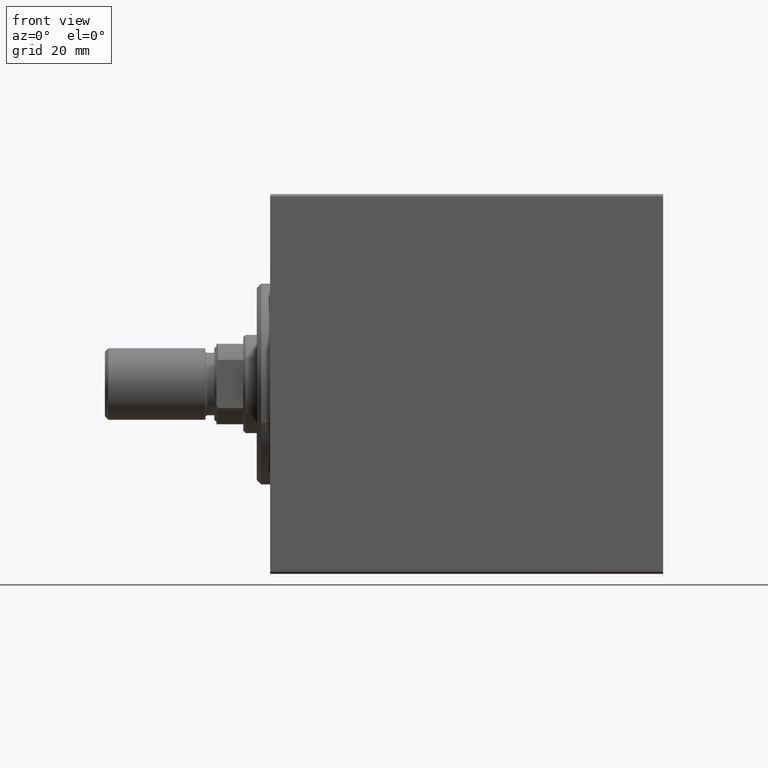
[diagram: clean part render]
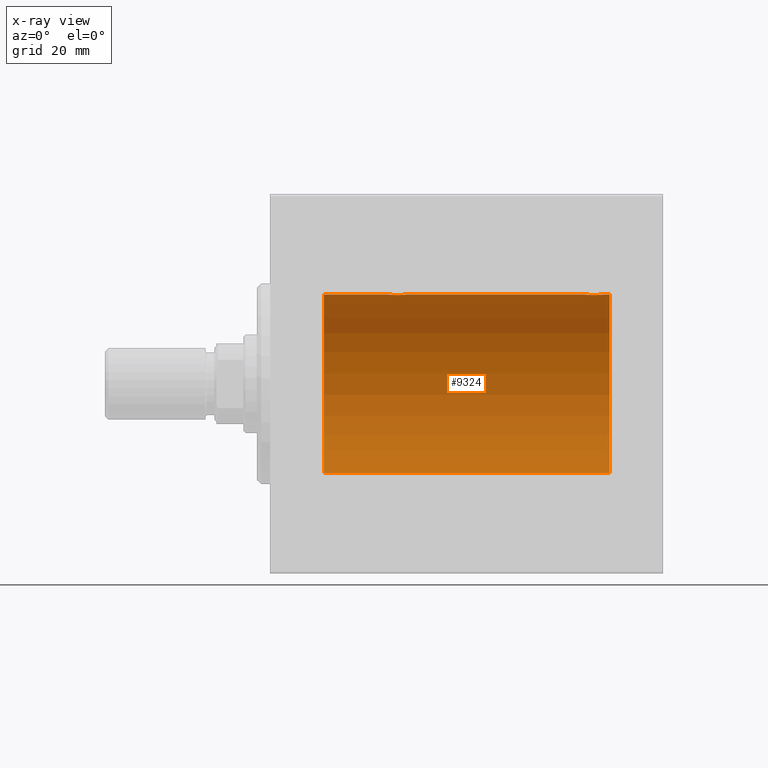
[diagram: x-ray — body ghosted, one internal face saturated and labeled with its STEP entity id]
A machine part, front view, then the same camera in x-ray: the body is ghosted and one INTERNAL B-rep face — a face not visible from any outside direction — is saturated and labeled: STEP entity #9324.
In plain terms, the highlighted cylindrical surface (partial cylindrical patch) has radius 20 mm, axis along (-1, -0, -0).
Its self-contained STEP definition (entity closure, byte-faithful):
#1164 = DIRECTION ( 'NONE',  ( -1.000000000000000000, -0.000000000000000000, -0.000000000000000000 ) ) ;
#1178 = CARTESIAN_POINT ( 'NONE',  ( 74.00615770380713343, 1.322305185229304181, 19.95645382900617548 ) ) ;
#1425 = AXIS2_PLACEMENT_3D ( 'NONE', #35926, #19293, #19733 ) ;
#1738 = CARTESIAN_POINT ( 'NONE',  ( 74.50000000000001421, 1.186436973908835920E-15, 20.00000000000000000 ) ) ;
#2182 = CARTESIAN_POINT ( 'NONE',  ( 30.29721343056696270, 0.8872481584516728192, 19.98067755938509293 ) ) ;
#2316 = EDGE_CURVE ( 'NONE', #23399, #4455, #19003, .T. ) ;
#2392 = CARTESIAN_POINT ( 'NONE',  ( 26.51308707988552982, 0.2631998640366418063, 19.99867931558985745 ) ) ;
#2435 = ORIENTED_EDGE ( 'NONE', *, *, #30369, .T. ) ;
#2542 = LINE ( 'NONE', #9286, #22525 ) ;
#3048 = CARTESIAN_POINT ( 'NONE',  ( 30.48701494615325203, 0.2622407139811110399, 19.99868965376114716 ) ) ;
#3874 = CARTESIAN_POINT ( 'NONE',  ( 74.23576365127897247, 1.002099838626306916, 19.97517568592525805 ) ) ;
#4204 = DIRECTION ( 'NONE',  ( -1.000000000000000000, 0.000000000000000000, 0.000000000000000000 ) ) ;
#4455 = VERTEX_POINT ( 'NONE', #24556 ) ;
#5423 = CYLINDRICAL_SURFACE ( 'NONE', #25415, 20.00000000000000000 ) ;
#5438 = CARTESIAN_POINT ( 'NONE',  ( 76.00000000000000000, 0.000000000000000000, 20.00000000000000000 ) ) ;
#5556 = CARTESIAN_POINT ( 'NONE',  ( 26.70246098872837592, 0.8865903856744279388, 19.98070694681038972 ) ) ;
#5771 = CARTESIAN_POINT ( 'NONE',  ( 28.37018818709294266, 2.000047251570880924, 19.89974399317116038 ) ) ;
#5876 = CARTESIAN_POINT ( 'NONE',  ( 76.00000000000000000, 0.000000000000000000, 20.00000000000000000 ) ) ;
#6252 = ORIENTED_EDGE ( 'NONE', *, *, #36540, .T. ) ;
#7701 = CARTESIAN_POINT ( 'NONE',  ( 73.72950112230634545, 1.598854313793176551, 19.93684595445884966 ) ) ;
#8137 = CARTESIAN_POINT ( 'NONE',  ( 74.39765113166073718, 0.6450624715427610845, 19.98996196681220283 ) ) ;
#8793 = FACE_OUTER_BOUND ( 'NONE', #33242, .T. ) ;
#8920 = CARTESIAN_POINT ( 'NONE',  ( 30.39765113166074073, 0.6450624715427593081, 19.98996196681220283 ) ) ;
#9206 = EDGE_CURVE ( 'NONE', #17893, #43491, #2542, .T. ) ;
#9286 = CARTESIAN_POINT ( 'NONE',  ( 76.00000000000000000, 0.000000000000000000, 20.00000000000000000 ) ) ;
#9324 = ADVANCED_FACE ( 'NONE', ( #8793 ), #5423, .F. ) ;
#9573 = CARTESIAN_POINT ( 'NONE',  ( 30.00615770380712988, 1.322305185229305735, 19.95645382900617548 ) ) ;
#9620 = B_SPLINE_CURVE_WITH_KNOTS ( 'NONE', 3,
 ( #31311, #18247, #34680, #14434, #8137, #31967, #3874, #17584, #1178, #7701, #28593, #21849, #41646, #21193, #14212, #27931, #10848, #21416, #24573, #17810, #31530, #28149, #35125, #19155, #12620, #22075, #11722, #28814, #42525, #35785 ),
 .UNSPECIFIED., .F., .F.,
 ( 4, 2, 2, 2, 2, 2, 2, 2, 2, 2, 2, 2, 2, 2, 4 ),
 ( 1.152885170027690115E-18, 0.0003910512220831370437, 0.0007821024441662730031, 0.001173153666249408637, 0.001564204888332544705, 0.002346307332498786483, 0.003128409776665028695, 0.003519460998748129201, 0.003910512220831229707, 0.004301563442914329780, 0.004692614664997429852, 0.005083665887080529924, 0.005474717109163630864, 0.005865768331246730936, 0.006256819553329831876 ),
 .UNSPECIFIED. ) ;
#10122 = DIRECTION ( 'NONE',  ( -1.000000000000000000, -0.000000000000000000, -0.000000000000000000 ) ) ;
#10273 = ORIENTED_EDGE ( 'NONE', *, *, #41844, .T. ) ;
#10848 = CARTESIAN_POINT ( 'NONE',  ( 71.85628869360149906, 1.898109641280496751, 19.90978941500367227 ) ) ;
#11722 = CARTESIAN_POINT ( 'NONE',  ( 70.56426851132709999, 0.5196544277756649510, 19.99365919015136583 ) ) ;
#12013 = VECTOR ( 'NONE', #38725, 1000.000000000000000 ) ;
#12475 = VERTEX_POINT ( 'NONE', #35281 ) ;
#12620 = CARTESIAN_POINT ( 'NONE',  ( 70.70246098872841856, 0.8865903856744244971, 19.98070694681040038 ) ) ;
#13402 = CARTESIAN_POINT ( 'NONE',  ( 28.23758582179998911, 1.987020435121066742, 19.90106552791689509 ) ) ;
#14212 = CARTESIAN_POINT ( 'NONE',  ( 72.23758582180001042, 1.987020435121064521, 19.90106552791689154 ) ) ;
#14434 = CARTESIAN_POINT ( 'NONE',  ( 74.43615228383326610, 0.5179893069484604595, 19.99370013622813858 ) ) ;
#15797 = VECTOR ( 'NONE', #10122, 1000.000000000000000 ) ;
#15884 = CARTESIAN_POINT ( 'NONE',  ( 26.50000000000000711, 0.1305706983324430859, 20.00000000000000355 ) ) ;
#16012 = ORIENTED_EDGE ( 'NONE', *, *, #23275, .T. ) ;
#16331 = CARTESIAN_POINT ( 'NONE',  ( 26.50000000000000355, -1.552596590610734385E-23, 20.00000000000000000 ) ) ;
#16764 = CARTESIAN_POINT ( 'NONE',  ( 27.98100525813890371, 1.935912154109691308, 19.90610216711450775 ) ) ;
#16786 = ORIENTED_EDGE ( 'NONE', *, *, #40880, .T. ) ;
#17584 = CARTESIAN_POINT ( 'NONE',  ( 74.09059733457554842, 1.219458756546262235, 19.96308513509967142 ) ) ;
#17661 = VECTOR ( 'NONE', #37078, 1000.000000000000000 ) ;
#17810 = CARTESIAN_POINT ( 'NONE',  ( 71.28039724650255948, 1.590453176650905798, 19.93679350243183634 ) ) ;
#17893 = VERTEX_POINT ( 'NONE', #38845 ) ;
#18247 = CARTESIAN_POINT ( 'NONE',  ( 74.50000000000002842, 0.1322335637814732179, 19.99999999999999289 ) ) ;
#18680 = CARTESIAN_POINT ( 'NONE',  ( 76.00000000000000000, 0.000000000000000000, 0.000000000000000000 ) ) ;
#19003 = CIRCLE ( 'NONE', #31227, 20.00000000000000000 ) ;
#19022 = ORIENTED_EDGE ( 'NONE', *, *, #25510, .F. ) ;
#19155 = CARTESIAN_POINT ( 'NONE',  ( 70.76510545398019758, 1.003547732426800287, 19.97510079925437765 ) ) ;
#19241 = ORIENTED_EDGE ( 'NONE', *, *, #2316, .F. ) ;
#19267 = CARTESIAN_POINT ( 'NONE',  ( 26.56426851132708222, 0.5196544277756667274, 19.99365919015135873 ) ) ;
#19293 = DIRECTION ( 'NONE',  ( -1.000000000000000000, 0.000000000000000000, 0.000000000000000000 ) ) ;
#19484 = CARTESIAN_POINT ( 'NONE',  ( 26.76510545398016205, 1.003547732426802286, 19.97510079925437765 ) ) ;
#19733 = DIRECTION ( 'NONE',  ( 0.000000000000000000, 0.000000000000000000, 1.000000000000000000 ) ) ;
#19778 = CARTESIAN_POINT ( 'NONE',  ( 76.00000000000000000, 2.449293598294706513E-15, -20.00000000000000000 ) ) ;
#20970 = CARTESIAN_POINT ( 'NONE',  ( 11.99999999999999645, 0.000000000000000000, 20.00000000000000000 ) ) ;
#21193 = CARTESIAN_POINT ( 'NONE',  ( 72.37018818709297818, 2.000047251570878704, 19.89974399317116749 ) ) ;
#21371 = VERTEX_POINT ( 'NONE', #20970 ) ;
#21416 = CARTESIAN_POINT ( 'NONE',  ( 71.61403810544165083, 1.797847595792759101, 19.91909332229799645 ) ) ;
#21726 = VERTEX_POINT ( 'NONE', #1738 ) ;
#21849 = CARTESIAN_POINT ( 'NONE',  ( 73.02513908454996283, 1.947330458682945187, 19.90522393307484705 ) ) ;
#22075 = CARTESIAN_POINT ( 'NONE',  ( 70.60210312641139296, 0.6443418861413054977, 19.98998539619405435 ) ) ;
#22282 = B_SPLINE_CURVE_WITH_KNOTS ( 'NONE', 3,
 ( #36569, #23300, #3048, #40378, #8920, #2182, #22861, #40162, #9573, #32985, #26672, #44195, #40599, #5771, #13402, #16764, #43538, #37005, #43756, #26458, #22640, #36351, #36790, #19484, #5556, #33423, #19267, #2392, #15884, #16331 ),
 .UNSPECIFIED., .F., .F.,
 ( 4, 2, 2, 2, 2, 2, 2, 2, 2, 2, 2, 2, 2, 2, 4 ),
 ( 1.491064056086547960E-18, 0.0003910512220831125949, 0.0007821024441662236719, 0.001173153666249334695, 0.001564204888332445826, 0.002346307332498667655, 0.003128409776664889917, 0.003519460998748006036, 0.003910512220831123022, 0.004301563442914238707, 0.004692614664997354391, 0.005083665887080470944, 0.005474717109163585761, 0.005865768331246702313, 0.006256819553329818866 ),
 .UNSPECIFIED. ) ;
#22525 = VECTOR ( 'NONE', #43905, 1000.000000000000000 ) ;
#22640 = CARTESIAN_POINT ( 'NONE',  ( 27.17939834916166575, 1.507796451871720844, 19.94330239452387943 ) ) ;
#22861 = CARTESIAN_POINT ( 'NONE',  ( 30.23576365127895471, 1.002099838626313133, 19.97517568592526516 ) ) ;
#23275 = EDGE_CURVE ( 'NONE', #21726, #17893, #9620, .T. ) ;
#23300 = CARTESIAN_POINT ( 'NONE',  ( 30.49999999999998934, 0.1322335637814726905, 19.99999999999999645 ) ) ;
#23399 = VERTEX_POINT ( 'NONE', #5438 ) ;
#23910 = ORIENTED_EDGE ( 'NONE', *, *, #9206, .T. ) ;
#24556 = CARTESIAN_POINT ( 'NONE',  ( 76.00000000000000000, 2.449293598294706513E-15, -20.00000000000000000 ) ) ;
#24573 = CARTESIAN_POINT ( 'NONE',  ( 71.49702773215048524, 1.735228749583821672, 19.92471474456648650 ) ) ;
#25415 = AXIS2_PLACEMENT_3D ( 'NONE', #18680, #1164, #32627 ) ;
#25510 = EDGE_CURVE ( 'NONE', #4455, #12475, #30335, .T. ) ;
#26244 = CARTESIAN_POINT ( 'NONE',  ( 30.50000000000000000, -9.453669475664189070E-16, 20.00000000000000000 ) ) ;
#26348 = LINE ( 'NONE', #5876, #15797 ) ;
#26458 = CARTESIAN_POINT ( 'NONE',  ( 27.28039724650257014, 1.590453176650910017, 19.93679350243183990 ) ) ;
#26672 = CARTESIAN_POINT ( 'NONE',  ( 29.50645759073829666, 1.747830109444738822, 19.92373272380676852 ) ) ;
#27113 = CARTESIAN_POINT ( 'NONE',  ( 76.00000000000000000, 0.000000000000000000, 20.00000000000000000 ) ) ;
#27931 = CARTESIAN_POINT ( 'NONE',  ( 71.98100525813890727, 1.935912154109689753, 19.90610216711451130 ) ) ;
#28149 = CARTESIAN_POINT ( 'NONE',  ( 70.99261358456013227, 1.321069663197660171, 19.95654117037011943 ) ) ;
#28593 = CARTESIAN_POINT ( 'NONE',  ( 73.50645759073830732, 1.747830109444737046, 19.92373272380676852 ) ) ;
#28814 = CARTESIAN_POINT ( 'NONE',  ( 70.51308707988556534, 0.2631998640366407516, 19.99867931558986101 ) ) ;
#30335 = LINE ( 'NONE', #19778, #17661 ) ;
#30369 = EDGE_CURVE ( 'NONE', #44356, #21371, #30489, .T. ) ;
#30489 = LINE ( 'NONE', #27113, #12013 ) ;
#31227 = AXIS2_PLACEMENT_3D ( 'NONE', #35006, #4204, #31627 ) ;
#31311 = CARTESIAN_POINT ( 'NONE',  ( 74.50000000000001421, 1.186436973908835920E-15, 20.00000000000000000 ) ) ;
#31530 = CARTESIAN_POINT ( 'NONE',  ( 71.17939834916165864, 1.507796451871717291, 19.94330239452387943 ) ) ;
#31627 = DIRECTION ( 'NONE',  ( 0.000000000000000000, 0.000000000000000000, 1.000000000000000000 ) ) ;
#31967 = CARTESIAN_POINT ( 'NONE',  ( 74.29721343056696981, 0.8872481584516744846, 19.98067755938508938 ) ) ;
#32627 = DIRECTION ( 'NONE',  ( 0.000000000000000000, 0.000000000000000000, 1.000000000000000000 ) ) ;
#32985 = CARTESIAN_POINT ( 'NONE',  ( 29.72950112230633124, 1.598854313793179660, 19.93684595445884256 ) ) ;
#33242 = EDGE_LOOP ( 'NONE', ( #19022, #19241, #10273, #16012, #23910, #6252, #2435, #16786 ) ) ;
#33423 = CARTESIAN_POINT ( 'NONE',  ( 26.60210312641135033, 0.6443418861413088283, 19.98998539619404724 ) ) ;
#34680 = CARTESIAN_POINT ( 'NONE',  ( 74.48701494615326624, 0.2622407139811092636, 19.99868965376114716 ) ) ;
#35006 = CARTESIAN_POINT ( 'NONE',  ( 76.00000000000000000, 0.000000000000000000, 0.000000000000000000 ) ) ;
#35125 = CARTESIAN_POINT ( 'NONE',  ( 70.90992932310328456, 1.220099331833891965, 19.96304379627741810 ) ) ;
#35281 = CARTESIAN_POINT ( 'NONE',  ( 11.99999999999999645, 2.449293598294706513E-15, -20.00000000000000000 ) ) ;
#35652 = CARTESIAN_POINT ( 'NONE',  ( 26.50000000000000355, -1.552596590610734385E-23, 20.00000000000000000 ) ) ;
#35785 = CARTESIAN_POINT ( 'NONE',  ( 70.50000000000000000, -1.553188236289650144E-23, 20.00000000000000000 ) ) ;
#35926 = CARTESIAN_POINT ( 'NONE',  ( 11.99999999999999645, 0.000000000000000000, 0.000000000000000000 ) ) ;
#36351 = CARTESIAN_POINT ( 'NONE',  ( 26.99261358456011806, 1.321069663197663724, 19.95654117037012298 ) ) ;
#36540 = EDGE_CURVE ( 'NONE', #43491, #44356, #22282, .T. ) ;
#36569 = CARTESIAN_POINT ( 'NONE',  ( 30.50000000000000000, -9.453669475664189070E-16, 20.00000000000000000 ) ) ;
#36790 = CARTESIAN_POINT ( 'NONE',  ( 26.90992932310326680, 1.220099331833893963, 19.96304379627741099 ) ) ;
#37005 = CARTESIAN_POINT ( 'NONE',  ( 27.61403810544162951, 1.797847595792757769, 19.91909332229799290 ) ) ;
#37078 = DIRECTION ( 'NONE',  ( -1.000000000000000000, -0.000000000000000000, -0.000000000000000000 ) ) ;
#38725 = DIRECTION ( 'NONE',  ( -1.000000000000000000, -0.000000000000000000, -0.000000000000000000 ) ) ;
#38845 = CARTESIAN_POINT ( 'NONE',  ( 70.50000000000000000, -1.553188236289650144E-23, 20.00000000000000000 ) ) ;
#40162 = CARTESIAN_POINT ( 'NONE',  ( 30.09059733457551999, 1.219458756546268674, 19.96308513509966787 ) ) ;
#40378 = CARTESIAN_POINT ( 'NONE',  ( 30.43615228383326610, 0.5179893069484617918, 19.99370013622814213 ) ) ;
#40599 = CARTESIAN_POINT ( 'NONE',  ( 28.76180153897438174, 1.999905101582716727, 19.89975827978156531 ) ) ;
#40880 = EDGE_CURVE ( 'NONE', #21371, #12475, #43081, .T. ) ;
#41646 = CARTESIAN_POINT ( 'NONE',  ( 72.76180153897439595, 1.999905101582712952, 19.89975827978156531 ) ) ;
#41844 = EDGE_CURVE ( 'NONE', #23399, #21726, #26348, .T. ) ;
#42525 = CARTESIAN_POINT ( 'NONE',  ( 70.50000000000001421, 0.1305706983324430304, 20.00000000000001066 ) ) ;
#43081 = CIRCLE ( 'NONE', #1425, 20.00000000000000000 ) ;
#43491 = VERTEX_POINT ( 'NONE', #26244 ) ;
#43538 = CARTESIAN_POINT ( 'NONE',  ( 27.85628869360149906, 1.898109641280498083, 19.90978941500367583 ) ) ;
#43756 = CARTESIAN_POINT ( 'NONE',  ( 27.49702773215046392, 1.735228749583825225, 19.92471474456649005 ) ) ;
#43905 = DIRECTION ( 'NONE',  ( -1.000000000000000000, -0.000000000000000000, -0.000000000000000000 ) ) ;
#44195 = CARTESIAN_POINT ( 'NONE',  ( 29.02513908454999125, 1.947330458682948739, 19.90522393307485061 ) ) ;
#44356 = VERTEX_POINT ( 'NONE', #35652 ) ;